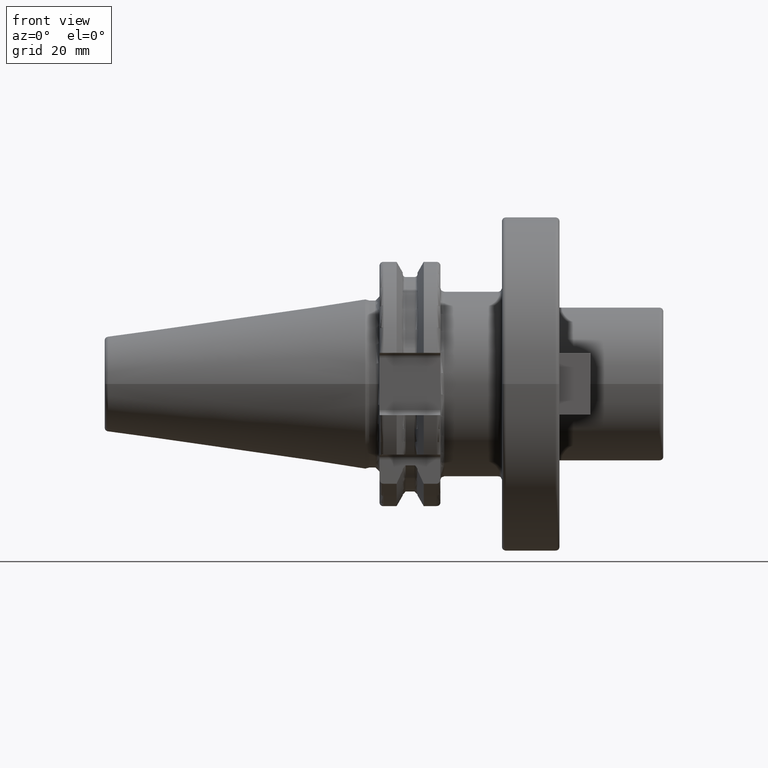
[diagram: clean part render]
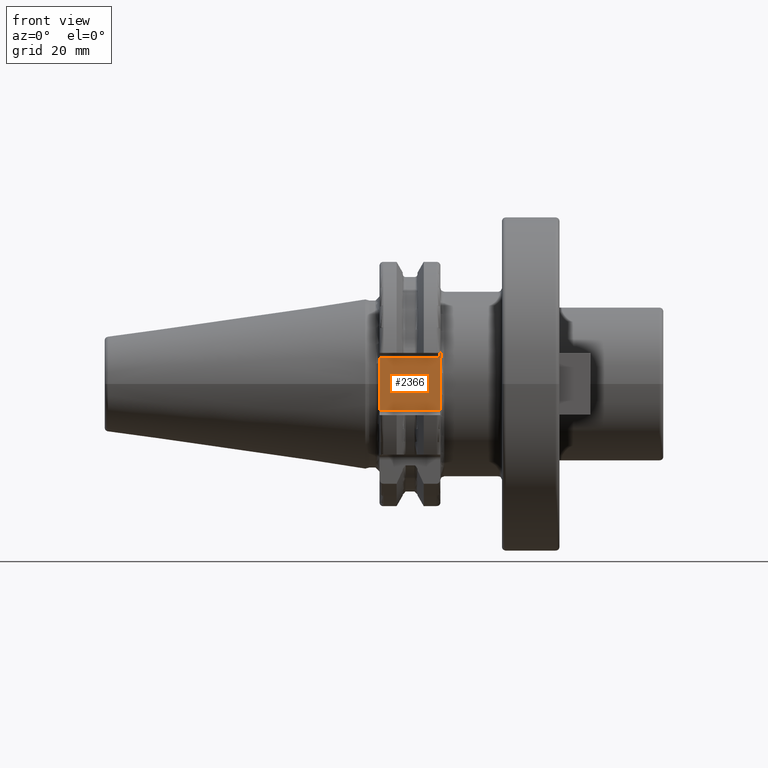
[diagram: same view with one face highlighted and labeled with its STEP entity id]
A machine part, front view. The second image highlights one B-rep face of the part: STEP entity #2366.
In plain terms, the highlighted planar face has unit normal (0, 1, 0).
Its self-contained STEP definition (entity closure, byte-faithful):
#157=DIRECTION('',(0.E0,-2.940645058851E-6,9.999999999957E-1));
#158=VECTOR('',#157,4.017669872097E0);
#159=CARTESIAN_POINT('',(1.905E1,-2.484998818546E1,2.732330127920E0));
#160=LINE('',#159,#158);
#195=DIRECTION('',(0.E0,1.226059042604E-6,9.999999999992E-1));
#196=VECTOR('',#195,4.014849642958E0);
#197=CARTESIAN_POINT('',(1.905E1,-2.485E1,-6.75E0));
#198=LINE('',#197,#196);
#249=DIRECTION('',(-1.E0,0.E0,0.E0));
#250=VECTOR('',#249,1.585E1);
#251=CARTESIAN_POINT('',(1.905E1,-2.485E1,-6.75E0));
#252=LINE('',#251,#250);
#253=DIRECTION('',(-1.E0,0.E0,0.E0));
#254=VECTOR('',#253,1.585E1);
#255=CARTESIAN_POINT('',(1.905E1,-2.485E1,6.75E0));
#256=LINE('',#255,#254);
#275=CARTESIAN_POINT('',(1.905E1,-2.484999507756E1,-2.735150357045E0));
#276=CARTESIAN_POINT('',(1.905E1,-2.484999507756E1,-2.126184104873E0));
#277=CARTESIAN_POINT('',(1.906190710186E1,-2.485000072187E1,
-9.085724635250E-1));
#278=CARTESIAN_POINT('',(1.906190709160E1,-2.485000485713E1,9.095135523553E-1));
#279=CARTESIAN_POINT('',(1.905E1,-2.484998818546E1,2.123364309674E0));
#280=CARTESIAN_POINT('',(1.905E1,-2.484998818546E1,2.732330127920E0));
#806=DIRECTION('',(0.E0,0.E0,1.E0));
#807=VECTOR('',#806,1.35E1);
#808=CARTESIAN_POINT('',(3.2E0,-2.485E1,-6.75E0));
#809=LINE('',#808,#807);
#1821=CARTESIAN_POINT('',(1.905E1,-2.485E1,-6.75E0));
#1822=CARTESIAN_POINT('',(3.2E0,-2.485E1,-6.75E0));
#1823=VERTEX_POINT('',#1821);
#1824=VERTEX_POINT('',#1822);
#1833=CARTESIAN_POINT('',(1.905E1,-2.485E1,6.75E0));
#1834=CARTESIAN_POINT('',(3.2E0,-2.485E1,6.75E0));
#1835=VERTEX_POINT('',#1833);
#1836=VERTEX_POINT('',#1834);
#1874=CARTESIAN_POINT('',(1.905E1,-2.484999507756E1,-2.735150357045E0));
#1875=VERTEX_POINT('',#1874);
#1876=CARTESIAN_POINT('',(1.905E1,-2.484998818546E1,2.732330127920E0));
#1877=VERTEX_POINT('',#1876);
#2350=CARTESIAN_POINT('',(1.905E1,-2.485E1,-8.1E0));
#2351=DIRECTION('',(0.E0,1.E0,0.E0));
#2352=DIRECTION('',(0.E0,0.E0,1.E0));
#2353=AXIS2_PLACEMENT_3D('',#2350,#2351,#2352);
#2354=PLANE('',#2353);
#2355=ORIENTED_EDGE('',*,*,#2197,.F.);
#2357=ORIENTED_EDGE('',*,*,#2356,.F.);
#2358=ORIENTED_EDGE('',*,*,#2235,.F.);
#2360=ORIENTED_EDGE('',*,*,#2359,.T.);
#2362=ORIENTED_EDGE('',*,*,#2361,.T.);
#2363=ORIENTED_EDGE('',*,*,#2343,.F.);
#2364=EDGE_LOOP('',(#2355,#2357,#2358,#2360,#2362,#2363));
#2365=FACE_OUTER_BOUND('',#2364,.F.);
#2366=ADVANCED_FACE('',(#2365),#2354,.F.);
#281=B_SPLINE_CURVE_WITH_KNOTS('',3,(#275,#276,#277,#278,#279,#280),
.UNSPECIFIED.,.F.,.F.,(4,1,1,4),(0.E0,3.333333333333E-1,6.666666666667E-1,1.E0),
.UNSPECIFIED.);
#2197=EDGE_CURVE('',#1877,#1835,#160,.T.);
#2235=EDGE_CURVE('',#1823,#1875,#198,.T.);
#2343=EDGE_CURVE('',#1835,#1836,#256,.T.);
#2356=EDGE_CURVE('',#1875,#1877,#281,.T.);
#2359=EDGE_CURVE('',#1823,#1824,#252,.T.);
#2361=EDGE_CURVE('',#1824,#1836,#809,.T.);